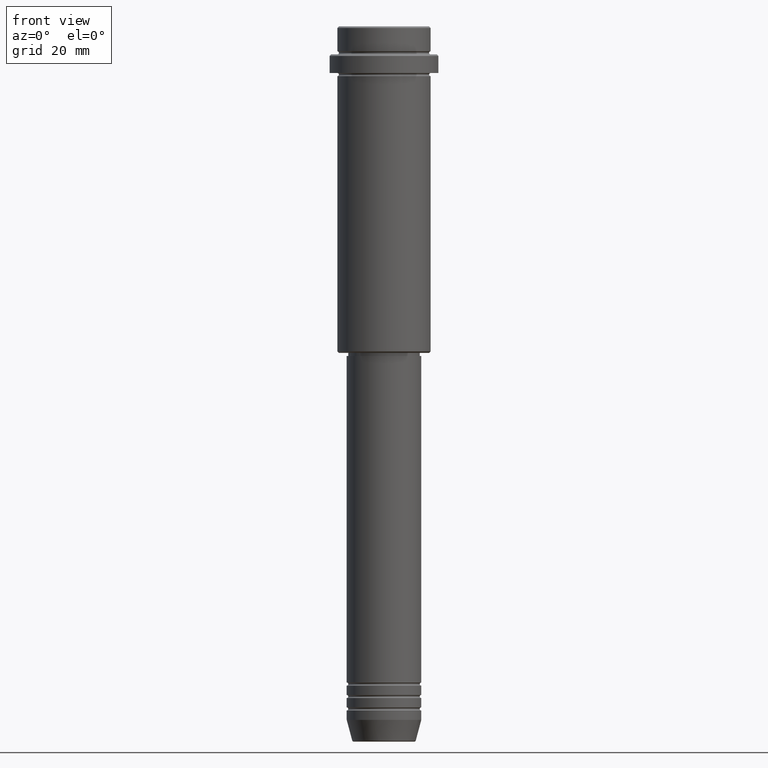
[diagram: clean part render]
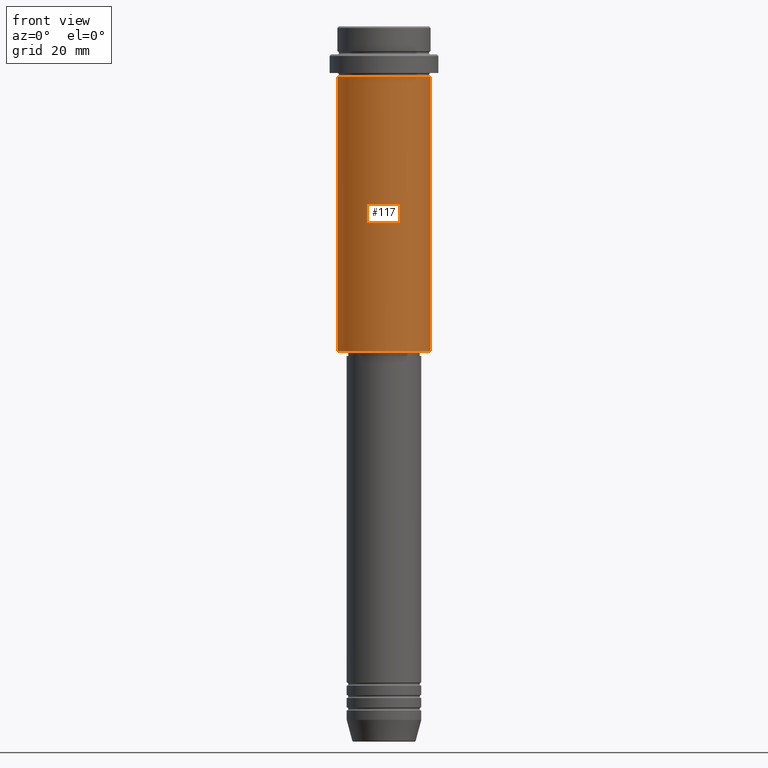
[diagram: same view with one face highlighted and labeled with its STEP entity id]
A machine part, front view. The second image highlights one B-rep face of the part: STEP entity #117.
In plain terms, the highlighted cylindrical surface (partial cylindrical patch) has radius 15 mm, axis along (-0, -0, 1).
Its self-contained STEP definition (entity closure, byte-faithful):
#18 = VERTEX_POINT ( 'NONE', #422 ) ;
#32 = ORIENTED_EDGE ( 'NONE', *, *, #241, .F. ) ;
#59 = DIRECTION ( 'NONE',  ( -0.000000000000000000, -0.000000000000000000, 1.000000000000000000 ) ) ;
#117 = ADVANCED_FACE ( 'NONE', ( #753 ), #1181, .T. ) ;
#183 = DIRECTION ( 'NONE',  ( -0.000000000000000000, -0.000000000000000000, 1.000000000000000000 ) ) ;
#208 = CARTESIAN_POINT ( 'NONE',  ( 15.00000000000000000, 0.000000000000000000, -104.4999999999999432 ) ) ;
#219 = DIRECTION ( 'NONE',  ( 1.000000000000000000, 0.000000000000000000, 0.000000000000000000 ) ) ;
#241 = EDGE_CURVE ( 'NONE', #732, #18, #657, .T. ) ;
#259 = DIRECTION ( 'NONE',  ( -1.000000000000000000, 0.000000000000000000, 0.000000000000000000 ) ) ;
#261 = AXIS2_PLACEMENT_3D ( 'NONE', #765, #183, #1051 ) ;
#263 = AXIS2_PLACEMENT_3D ( 'NONE', #1304, #1406, #219 ) ;
#267 = VECTOR ( 'NONE', #1277, 1000.000000000000000 ) ;
#327 = EDGE_CURVE ( 'NONE', #1047, #18, #342, .T. ) ;
#342 = LINE ( 'NONE', #782, #1335 ) ;
#422 = CARTESIAN_POINT ( 'NONE',  ( 15.00000000000000178, 0.000000000000000000, -16.00000000000000000 ) ) ;
#480 = EDGE_CURVE ( 'NONE', #1015, #1047, #1291, .T. ) ;
#489 = CARTESIAN_POINT ( 'NONE',  ( -15.00000000000000000, 1.836970198721029589E-15, -104.4999999999999432 ) ) ;
#545 = ORIENTED_EDGE ( 'NONE', *, *, #1069, .F. ) ;
#619 = CARTESIAN_POINT ( 'NONE',  ( -15.00000000000000000, 1.836970198721029589E-15, 0.000000000000000000 ) ) ;
#657 = CIRCLE ( 'NONE', #263, 15.00000000000000178 ) ;
#680 = AXIS2_PLACEMENT_3D ( 'NONE', #1346, #59, #259 ) ;
#732 = VERTEX_POINT ( 'NONE', #869 ) ;
#753 = FACE_OUTER_BOUND ( 'NONE', #1361, .T. ) ;
#765 = CARTESIAN_POINT ( 'NONE',  ( 0.000000000000000000, 0.000000000000000000, 0.000000000000000000 ) ) ;
#782 = CARTESIAN_POINT ( 'NONE',  ( 15.00000000000000000, 0.000000000000000000, 0.000000000000000000 ) ) ;
#869 = CARTESIAN_POINT ( 'NONE',  ( -15.00000000000000355, 1.836970198721029983E-15, -16.00000000000000000 ) ) ;
#953 = LINE ( 'NONE', #619, #267 ) ;
#1015 = VERTEX_POINT ( 'NONE', #489 ) ;
#1047 = VERTEX_POINT ( 'NONE', #208 ) ;
#1051 = DIRECTION ( 'NONE',  ( 1.000000000000000000, 0.000000000000000000, 0.000000000000000000 ) ) ;
#1069 = EDGE_CURVE ( 'NONE', #1015, #732, #953, .T. ) ;
#1101 = DIRECTION ( 'NONE',  ( -0.000000000000000000, -0.000000000000000000, 1.000000000000000000 ) ) ;
#1120 = ORIENTED_EDGE ( 'NONE', *, *, #327, .T. ) ;
#1181 = CYLINDRICAL_SURFACE ( 'NONE', #261, 15.00000000000000000 ) ;
#1277 = DIRECTION ( 'NONE',  ( -0.000000000000000000, -0.000000000000000000, 1.000000000000000000 ) ) ;
#1291 = CIRCLE ( 'NONE', #680, 15.00000000000000000 ) ;
#1298 = ORIENTED_EDGE ( 'NONE', *, *, #480, .T. ) ;
#1304 = CARTESIAN_POINT ( 'NONE',  ( 0.000000000000000000, 0.000000000000000000, -16.00000000000000000 ) ) ;
#1335 = VECTOR ( 'NONE', #1101, 1000.000000000000000 ) ;
#1346 = CARTESIAN_POINT ( 'NONE',  ( 0.000000000000000000, 0.000000000000000000, -104.4999999999999432 ) ) ;
#1361 = EDGE_LOOP ( 'NONE', ( #545, #1298, #1120, #32 ) ) ;
#1406 = DIRECTION ( 'NONE',  ( -0.000000000000000000, -0.000000000000000000, 1.000000000000000000 ) ) ;